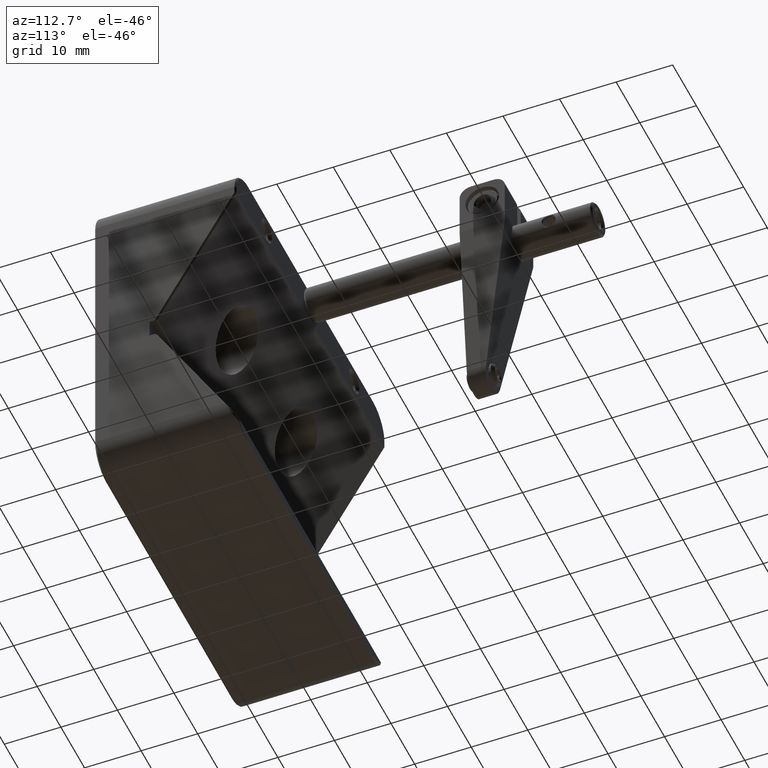
[diagram: clean part render]
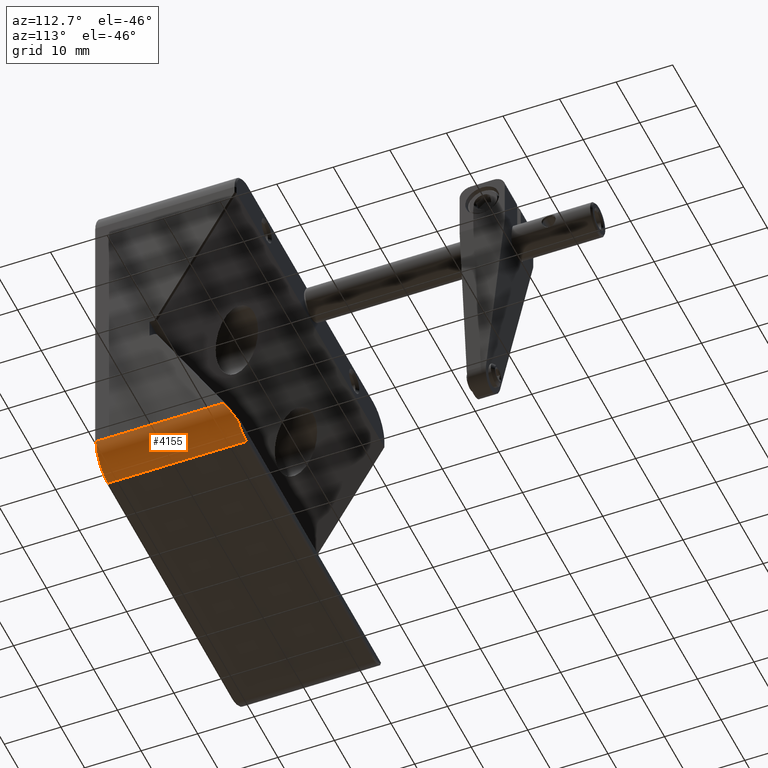
[diagram: same view with one face highlighted and labeled with its STEP entity id]
A machine part, auxiliary view. The second image highlights one B-rep face of the part: STEP entity #4155.
In plain terms, the highlighted cylindrical surface (edge-blend (fillet) strip) has radius 5 mm, axis along (0, 1, 0).
Its self-contained STEP definition (entity closure, byte-faithful):
#23 = CARTESIAN_POINT ( 'NONE',  ( 31.14710638774056051, 11.31898675411768274, -26.84676359476688745 ) ) ;
#509 = AXIS2_PLACEMENT_3D ( 'NONE', #3673, #3968, #992 ) ;
#637 = CARTESIAN_POINT ( 'NONE',  ( 26.50000000000000000, -12.25000000000000000, -24.99999999999999289 ) ) ;
#651 = B_SPLINE_CURVE_WITH_KNOTS ( 'NONE', 3,
 ( #8904, #2183, #675, #5938, #737, #9632, #7469, #8242, #764, #8841, #3691, #8212, #2957, #3019, #6699, #8146, #1461, #5148, #7342, #1431, #5213, #2217, #3796, #5245, #23, #2927, #8108, #1500, #6642, #7439, #5119, #3724, #711, #1533, #8176, #5902, #5178, #6732, #2279, #4456, #7403, #4396, #8940, #1561, #1695, #7597, #6859, #4610, #7562, #7501, #9108, #6096, #6065, #2409, #2348, #7530, #4544, #3181, #9010, #6884, #6765 ),
 .UNSPECIFIED., .F., .F.,
 ( 4, 1, 2, 2, 1, 2, 2, 1, 1, 2, 2, 2, 1, 2, 2, 2, 1, 1, 2, 2, 2, 1, 1, 2, 2, 2, 1, 1, 1, 2, 2, 2, 1, 1, 1, 2, 2, 4 ),
 ( 0.0000000000000000000, 0.06250000000000613398, 0.09375000000000913158, 0.1250000000000121292, 0.1875000000000194011, 0.2187500000000232869, 0.2500000000000271450, 0.3125000000000323075, 0.3437500000000341949, 0.3593750000000362488, 0.3750000000000383582, 0.4375000000000443534, 0.4687500000000470735, 0.4843750000000490719, 0.5000000000000511813, 0.5625000000000576206, 0.5937500000000608402, 0.6093750000000627276, 0.6171875000000642819, 0.6250000000000658362, 0.6875000000000722755, 0.7187500000000747180, 0.7343750000000756062, 0.7421875000000743849, 0.7500000000000731637, 0.8125000000000506262, 0.8437500000000409672, 0.8593750000000358602, 0.8671875000000330846, 0.8710937500000317524, 0.8750000000000304201, 0.9062500000000150990, 0.9218750000000073275, 0.9296875000000033307, 0.9335937500000001110, 0.9355468749999985567, 0.9374999999999970024, 1.000000000000000000 ),
 .UNSPECIFIED. ) ;
#675 = CARTESIAN_POINT ( 'NONE',  ( 30.16837657183154064, 12.17049081561782842, -28.39924000156331019 ) ) ;
#692 = ORIENTED_EDGE ( 'NONE', *, *, #5423, .F. ) ;
#700 = LINE ( 'NONE', #3006, #6383 ) ;
#711 = CARTESIAN_POINT ( 'NONE',  ( 31.30569910218079244, 11.06431335570241004, -26.38243998268415069 ) ) ;
#737 = CARTESIAN_POINT ( 'NONE',  ( 30.30480309728982746, 12.08548550989280379, -28.24425458674371825 ) ) ;
#764 = CARTESIAN_POINT ( 'NONE',  ( 30.55724819673301340, 11.90895659211942359, -27.92240626512625923 ) ) ;
#865 = CARTESIAN_POINT ( 'NONE',  ( 26.50000000000001421, 12.25000000000000000, -30.00000000000000000 ) ) ;
#992 = DIRECTION ( 'NONE',  ( -1.000000000000000000, 6.938893903907227392E-16, 0.0000000000000000000 ) ) ;
#1305 = VERTEX_POINT ( 'NONE', #6102 ) ;
#1431 = CARTESIAN_POINT ( 'NONE',  ( 31.03279139138862419, 11.46380492409526752, -27.11080221382810862 ) ) ;
#1461 = CARTESIAN_POINT ( 'NONE',  ( 30.89662320030697984, 11.61211384261205026, -27.38119649791450527 ) ) ;
#1500 = CARTESIAN_POINT ( 'NONE',  ( 31.23830324293905747, 11.18219370764641596, -26.59736501048311652 ) ) ;
#1533 = CARTESIAN_POINT ( 'NONE',  ( 31.32712792195920670, 11.02236932235128286, -26.30597517589700729 ) ) ;
#1561 = CARTESIAN_POINT ( 'NONE',  ( 31.45840749105584777, 10.66046087876279813, -25.64614163544748848 ) ) ;
#1648 = VERTEX_POINT ( 'NONE', #8187 ) ;
#1695 = CARTESIAN_POINT ( 'NONE',  ( 31.46750034423864051, 10.61865754455442357, -25.56991843381490881 ) ) ;
#1792 = AXIS2_PLACEMENT_3D ( 'NONE', #5587, #4099, #9254 ) ;
#1863 = EDGE_CURVE ( 'NONE', #1648, #7658, #651, .T. ) ;
#1921 = CARTESIAN_POINT ( 'NONE',  ( 31.50000000000001421, 12.50000000000000000, -24.99999999999999289 ) ) ;
#1954 = DIRECTION ( 'NONE',  ( 5.551115123125782702E-16, 1.000000000000000000, 0.0000000000000000000 ) ) ;
#2183 = CARTESIAN_POINT ( 'NONE',  ( 30.08396812474158821, 12.21882429531146208, -28.48735798902583838 ) ) ;
#2217 = CARTESIAN_POINT ( 'NONE',  ( 31.08401214450896433, 11.40128737538324977, -26.99681639870065908 ) ) ;
#2279 = CARTESIAN_POINT ( 'NONE',  ( 31.39902304645900699, 10.85446679276436477, -25.99984538676570267 ) ) ;
#2348 = CARTESIAN_POINT ( 'NONE',  ( 31.49293002128732155, 10.45191306649794427, -25.26590477850001548 ) ) ;
#2409 = CARTESIAN_POINT ( 'NONE',  ( 31.49186677245320709, 10.46263445891831445, -25.28545245424922427 ) ) ;
#2780 = ORIENTED_EDGE ( 'NONE', *, *, #7286, .T. ) ;
#2899 = ORIENTED_EDGE ( 'NONE', *, *, #8495, .T. ) ;
#2916 = DIRECTION ( 'NONE',  ( 0.0000000000000000000, 1.000000000000000000, 0.0000000000000000000 ) ) ;
#2927 = CARTESIAN_POINT ( 'NONE',  ( 31.17618785954752170, 11.27797993361444817, -26.77200514594342451 ) ) ;
#2957 = CARTESIAN_POINT ( 'NONE',  ( 30.76196196583354592, 11.74132198887024359, -27.61677550624145283 ) ) ;
#3006 = CARTESIAN_POINT ( 'NONE',  ( 26.50000000000000711, -1.471045507628332732E-14, -30.00000000000000000 ) ) ;
#3019 = CARTESIAN_POINT ( 'NONE',  ( 30.83508002889051269, 11.67289181443928214, -27.49201019419710335 ) ) ;
#3181 = CARTESIAN_POINT ( 'NONE',  ( 31.49385546232195310, 10.44198929207965065, -25.24781150863174872 ) ) ;
#3404 = ORIENTED_EDGE ( 'NONE', *, *, #1863, .T. ) ;
#3578 = DIRECTION ( 'NONE',  ( 0.0000000000000000000, 0.0000000000000000000, 1.000000000000000000 ) ) ;
#3673 = CARTESIAN_POINT ( 'NONE',  ( 26.50000000000001421, 12.50000000000000355, -24.99999999999999289 ) ) ;
#3691 = CARTESIAN_POINT ( 'NONE',  ( 30.62999473358197378, 11.85204437682133971, -27.81864089108476534 ) ) ;
#3724 = CARTESIAN_POINT ( 'NONE',  ( 31.28057248108523325, 11.10959492408163918, -26.46499784750391271 ) ) ;
#3796 = CARTESIAN_POINT ( 'NONE',  ( 31.10066196477704992, 11.38008022228278016, -26.95815028968139160 ) ) ;
#3968 = DIRECTION ( 'NONE',  ( 5.551115123125782702E-16, 1.000000000000000000, 0.0000000000000000000 ) ) ;
#4099 = DIRECTION ( 'NONE',  ( 0.0000000000000000000, -1.000000000000000000, 0.0000000000000000000 ) ) ;
#4155 = ADVANCED_FACE ( 'NONE', ( #7939 ), #8420, .T. ) ;
#4341 = ORIENTED_EDGE ( 'NONE', *, *, #5713, .F. ) ;
#4396 = CARTESIAN_POINT ( 'NONE',  ( 31.43122725656451166, 10.76157737438310669, -25.83050158283496955 ) ) ;
#4456 = CARTESIAN_POINT ( 'NONE',  ( 31.40154121631379169, 10.84764587601146779, -25.98740923513975787 ) ) ;
#4544 = CARTESIAN_POINT ( 'NONE',  ( 31.49365703248187387, 10.44417061313240858, -25.25178853056735662 ) ) ;
#4576 = VERTEX_POINT ( 'NONE', #865 ) ;
#4610 = CARTESIAN_POINT ( 'NONE',  ( 31.47464522315199176, 10.58191646215824377, -25.50292836250924466 ) ) ;
#5119 = CARTESIAN_POINT ( 'NONE',  ( 31.27709298198929488, 11.11580035188127091, -26.47631177713559225 ) ) ;
#5148 = CARTESIAN_POINT ( 'NONE',  ( 30.94344243727394073, 11.56424754261136556, -27.29392601039272748 ) ) ;
#5178 = CARTESIAN_POINT ( 'NONE',  ( 31.38798658017998733, 10.88351355247081642, -26.05280556526098934 ) ) ;
#5213 = CARTESIAN_POINT ( 'NONE',  ( 31.05877641035973014, 11.43287732291606851, -27.05441342463687704 ) ) ;
#5245 = CARTESIAN_POINT ( 'NONE',  ( 31.10953219201585895, 11.36856867030112461, -26.93716192350834859 ) ) ;
#5423 = EDGE_CURVE ( 'NONE', #1305, #7658, #7892, .T. ) ;
#5587 = CARTESIAN_POINT ( 'NONE',  ( 26.50000000000001421, 12.25000000000000000, -24.99999999999999289 ) ) ;
#5712 = CIRCLE ( 'NONE', #6449, 5.000000000000000888 ) ;
#5713 = EDGE_CURVE ( 'NONE', #4576, #7841, #700, .T. ) ;
#5902 = CARTESIAN_POINT ( 'NONE',  ( 31.37193223040929979, 10.92354915264941795, -26.12580299162616271 ) ) ;
#5938 = CARTESIAN_POINT ( 'NONE',  ( 30.25055270652438821, 12.11980171497591918, -28.30682155979673098 ) ) ;
#6065 = CARTESIAN_POINT ( 'NONE',  ( 31.48958793768400000, 10.48366062390711662, -25.32378846366120584 ) ) ;
#6096 = CARTESIAN_POINT ( 'NONE',  ( 31.48739917722796733, 10.50096884557990862, -25.35534545586355648 ) ) ;
#6102 = CARTESIAN_POINT ( 'NONE',  ( 31.50000000000000000, -12.25000000000000000, -24.99999999999999289 ) ) ;
#6338 = CARTESIAN_POINT ( 'NONE',  ( 26.50000000000000000, -12.25000000000000000, -30.00000000000000000 ) ) ;
#6383 = VECTOR ( 'NONE', #8265, 1000.000000000000000 ) ;
#6449 = AXIS2_PLACEMENT_3D ( 'NONE', #637, #2916, #3578 ) ;
#6642 = CARTESIAN_POINT ( 'NONE',  ( 31.26116225637548496, 11.14367207982927255, -26.52712908159243455 ) ) ;
#6699 = CARTESIAN_POINT ( 'NONE',  ( 30.86571361634354105, 11.64294711409145755, -27.43741317919835865 ) ) ;
#6732 = CARTESIAN_POINT ( 'NONE',  ( 31.39463977131211436, 10.86611725446595678, -26.02108722265191432 ) ) ;
#6765 = CARTESIAN_POINT ( 'NONE',  ( 31.50000000000001421, 10.30606897707942693, -24.99999999999999289 ) ) ;
#6859 = CARTESIAN_POINT ( 'NONE',  ( 31.47349387380895536, 10.58809278346643445, -25.51418938264984249 ) ) ;
#6884 = CARTESIAN_POINT ( 'NONE',  ( 31.50000000000002132, 10.36609047173517695, -25.10943187188418335 ) ) ;
#7286 = EDGE_CURVE ( 'NONE', #1305, #7841, #5712, .T. ) ;
#7342 = CARTESIAN_POINT ( 'NONE',  ( 30.97991037276482373, 11.52477699798213351, -27.22196718854887010 ) ) ;
#7403 = CARTESIAN_POINT ( 'NONE',  ( 31.41761503697914648, 10.80346542054539682, -25.90685891474281277 ) ) ;
#7439 = CARTESIAN_POINT ( 'NONE',  ( 31.27074936092408208, 11.12697419220215345, -26.49668445476093837 ) ) ;
#7469 = CARTESIAN_POINT ( 'NONE',  ( 30.40927658728717020, 12.01642014408142067, -28.11833232105683322 ) ) ;
#7501 = CARTESIAN_POINT ( 'NONE',  ( 31.47935840721410017, 10.55580609598072783, -25.45532354695087207 ) ) ;
#7530 = CARTESIAN_POINT ( 'NONE',  ( 31.49336856693323128, 10.44727354619079307, -25.25744587187228873 ) ) ;
#7562 = CARTESIAN_POINT ( 'NONE',  ( 31.47532494284096316, 10.57819740118762120, -25.49614764878314332 ) ) ;
#7597 = CARTESIAN_POINT ( 'NONE',  ( 31.47174356542286588, 10.59732660296553952, -25.53102519380204072 ) ) ;
#7620 = CARTESIAN_POINT ( 'NONE',  ( 31.50000000000001421, 10.30606897707942693, -24.99999999999999289 ) ) ;
#7658 = VERTEX_POINT ( 'NONE', #7620 ) ;
#7841 = VERTEX_POINT ( 'NONE', #6338 ) ;
#7892 = LINE ( 'NONE', #1921, #8854 ) ;
#7939 = FACE_OUTER_BOUND ( 'NONE', #8911, .T. ) ;
#8108 = CARTESIAN_POINT ( 'NONE',  ( 31.21791433836436269, 11.21445777152488255, -26.65619083429822567 ) ) ;
#8146 = CARTESIAN_POINT ( 'NONE',  ( 30.88597365350258528, 11.62284676214077628, -27.40076518985892307 ) ) ;
#8176 = CARTESIAN_POINT ( 'NONE',  ( 31.35732268547433677, 10.95691264680354848, -26.18663394226305741 ) ) ;
#8187 = CARTESIAN_POINT ( 'NONE',  ( 30.02684928604854520, 12.25000000000000000, -28.54419724528685265 ) ) ;
#8212 = CARTESIAN_POINT ( 'NONE',  ( 30.69669966102933500, 11.79750649315853650, -27.71920647328515130 ) ) ;
#8242 = CARTESIAN_POINT ( 'NONE',  ( 30.48447260485554722, 11.96388230182730972, -28.02254921571152479 ) ) ;
#8265 = DIRECTION ( 'NONE',  ( -5.551115123125782702E-16, -1.000000000000000000, -0.0000000000000000000 ) ) ;
#8420 = CYLINDRICAL_SURFACE ( 'NONE', #509, 5.000000000000000888 ) ;
#8495 = EDGE_CURVE ( 'NONE', #4576, #1648, #8594, .T. ) ;
#8594 = CIRCLE ( 'NONE', #1792, 5.000000000000000888 ) ;
#8841 = CARTESIAN_POINT ( 'NONE',  ( 30.60518487415686195, 11.87180881510220942, -27.85467659417596309 ) ) ;
#8854 = VECTOR ( 'NONE', #1954, 1000.000000000000000 ) ;
#8904 = CARTESIAN_POINT ( 'NONE',  ( 30.02684928604854520, 12.25000000000000000, -28.54419724528685265 ) ) ;
#8911 = EDGE_LOOP ( 'NONE', ( #2899, #3404, #692, #2780, #4341 ) ) ;
#8940 = CARTESIAN_POINT ( 'NONE',  ( 31.44967678560088586, 10.69482050985101473, -25.70879016769973191 ) ) ;
#9010 = CARTESIAN_POINT ( 'NONE',  ( 31.49663217272227911, 10.41108507963990171, -25.19146655198345996 ) ) ;
#9108 = CARTESIAN_POINT ( 'NONE',  ( 31.48277295700377465, 10.53463301497822435, -25.41672226124836342 ) ) ;
#9254 = DIRECTION ( 'NONE',  ( 0.0000000000000000000, 0.0000000000000000000, -1.000000000000000000 ) ) ;
#9632 = CARTESIAN_POINT ( 'NONE',  ( 30.33271288252447562, 12.06736607469967915, -28.21121813884478868 ) ) ;